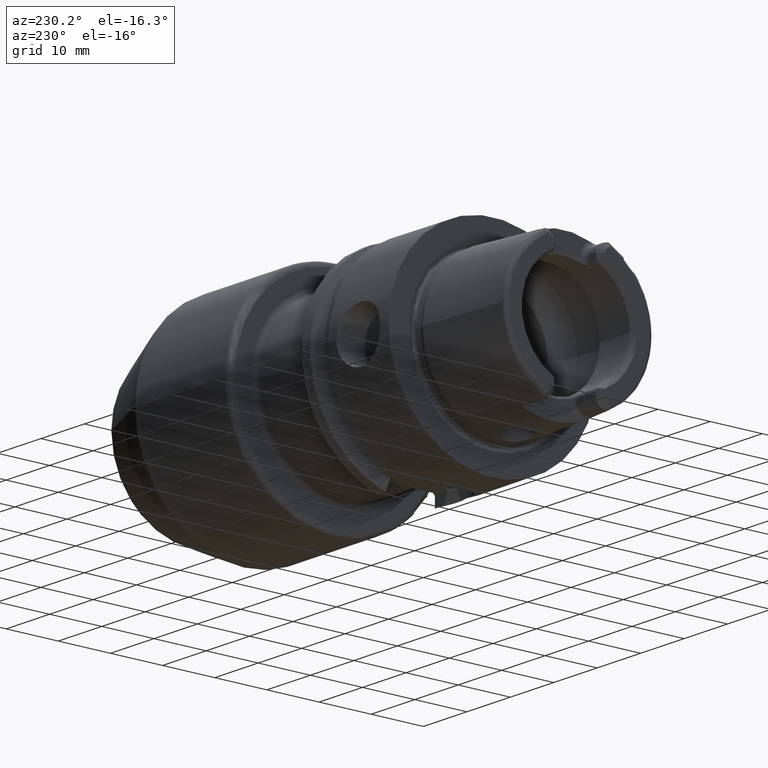
[diagram: clean part render]
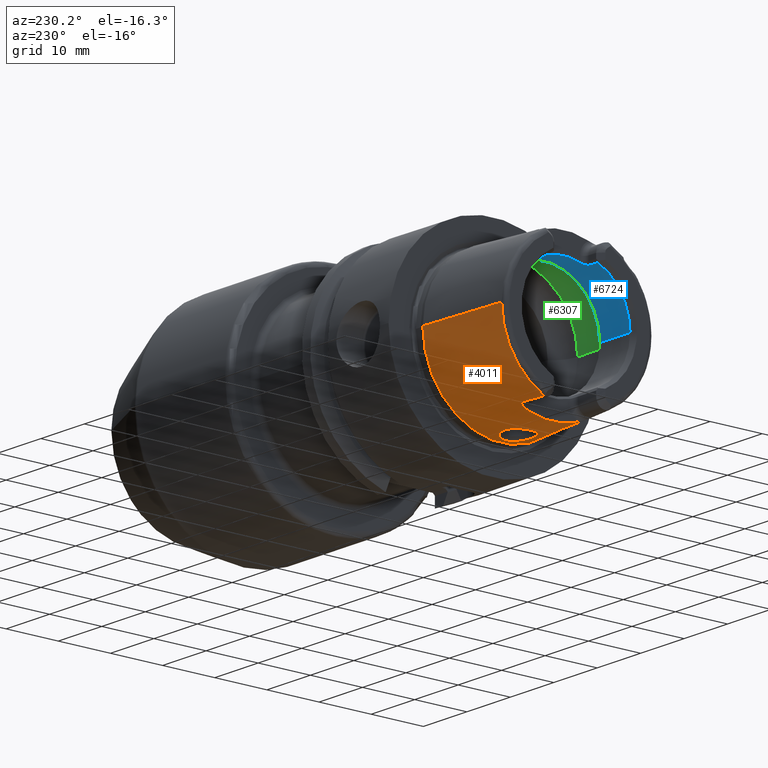
[diagram: same view with three faces highlighted in distinct colors, each labeled with its STEP entity id]
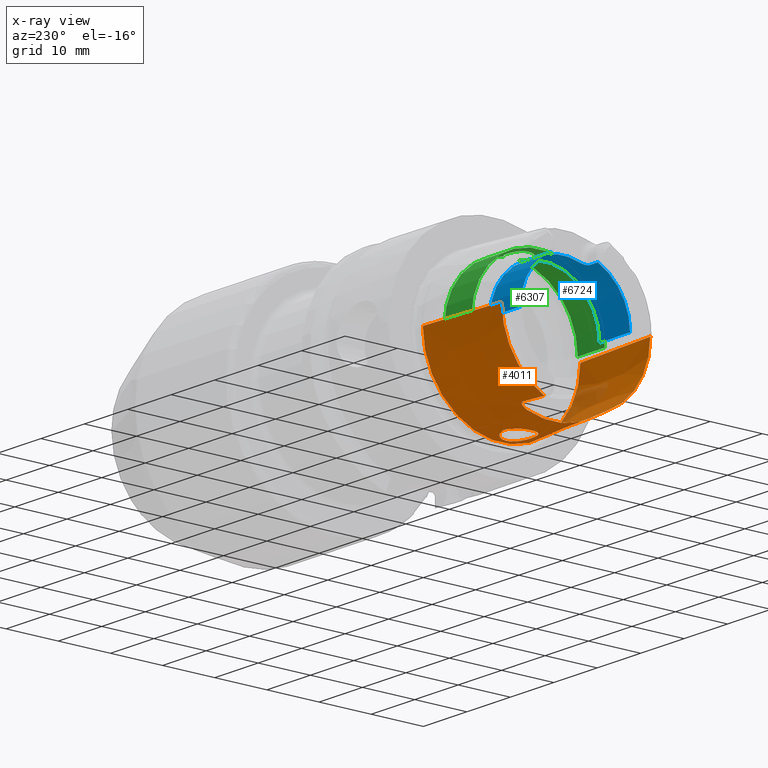
[diagram: x-ray of the same camera — body ghosted, the three highlighted faces saturated]
A machine part, auxiliary view with three faces highlighted in distinct colors.
The next image is the same camera in x-ray (body ghosted, the three faces saturated) — at least one of them is partly hidden behind the body in this view.
Their STEP definitions:

[orange] entity #4011 — the highlighted conical surface has half-angle 2.868 deg.
#309=CARTESIAN_POINT('',(-1.914002979389E1,0.E0,0.E0));
#310=DIRECTION('',(-1.E0,0.E0,0.E0));
#311=DIRECTION('',(0.E0,1.E0,0.E0));
#312=AXIS2_PLACEMENT_3D('',#309,#310,#311);
#390=CARTESIAN_POINT('',(-1.914002979389E1,0.E0,0.E0));
#391=DIRECTION('',(-1.E0,0.E0,0.E0));
#392=DIRECTION('',(0.E0,-4.271561162710E-1,-9.041778875488E-1));
#393=AXIS2_PLACEMENT_3D('',#390,#391,#392);
#523=CARTESIAN_POINT('',(-1.914002979389E1,6.084832258490E0,-1.288E1));
#524=CARTESIAN_POINT('',(-1.866428177370E1,6.140631473118E0,-1.288E1));
#525=CARTESIAN_POINT('',(-1.770476082680E1,6.251916414602E0,-1.288E1));
#526=CARTESIAN_POINT('',(-1.624153064153E1,6.418003532151E0,-1.288E1));
#527=CARTESIAN_POINT('',(-1.524986049720E1,6.528261059149E0,-1.288E1));
#528=CARTESIAN_POINT('',(-1.475E1,6.583286053E0,-1.288E1));
#530=CARTESIAN_POINT('',(-1.385E1,0.E0,0.E0));
#531=DIRECTION('',(1.E0,0.E0,0.E0));
#532=DIRECTION('',(0.E0,-3.438896312514E-1,-9.390100753015E-1));
#533=AXIS2_PLACEMENT_3D('',#530,#531,#532);
#535=CARTESIAN_POINT('',(-1.475E1,-6.583286053E0,-1.288E1));
#536=CARTESIAN_POINT('',(-1.524982054879E1,-6.528265456698E0,-1.288E1));
#537=CARTESIAN_POINT('',(-1.624143746232E1,-6.418013966559E0,-1.288E1));
#538=CARTESIAN_POINT('',(-1.770466890957E1,-6.251926990688E0,-1.288E1));
#539=CARTESIAN_POINT('',(-1.866424239688E1,-6.140636091520E0,-1.288E1));
#540=CARTESIAN_POINT('',(-1.914002979389E1,-6.084832258490E0,-1.288E1));
#542=DIRECTION('',(-9.987473526255E-1,5.003724236654E-2,0.E0));
#543=VECTOR('',#542,1.716152713580E1);
#544=CARTESIAN_POINT('',(-2.E0,-1.51037E1,0.E0));
#545=LINE('',#544,#543);
#546=CARTESIAN_POINT('',(-2.E0,0.E0,0.E0));
#547=DIRECTION('',(1.E0,0.E0,0.E0));
#548=DIRECTION('',(0.E0,-1.E0,0.E0));
#549=AXIS2_PLACEMENT_3D('',#546,#547,#548);
#551=DIRECTION('',(-9.987473526255E-1,-5.003724236654E-2,0.E0));
#552=VECTOR('',#551,1.716152713580E1);
#553=CARTESIAN_POINT('',(-2.E0,1.51037E1,0.E0));
#554=LINE('',#553,#552);
#555=CARTESIAN_POINT('',(-3.100721094176E0,2.355300483820E-9,
-1.504852333800E1));
#556=CARTESIAN_POINT('',(-3.100678992068E0,1.770140856364E-1,
-1.504852544731E1));
#557=CARTESIAN_POINT('',(-3.132326517496E0,5.260705930135E-1,
-1.504082638071E1));
#558=CARTESIAN_POINT('',(-3.276379810585E0,1.044086009470E0,-1.500630095381E1));
#559=CARTESIAN_POINT('',(-3.512592451688E0,1.524139717820E0,-1.495278605815E1));
#560=CARTESIAN_POINT('',(-3.833687591476E0,1.953544680709E0,-1.488600819184E1));
#561=CARTESIAN_POINT('',(-4.230740763601E0,2.317252707807E0,-1.481301275923E1));
#562=CARTESIAN_POINT('',(-4.690735032711E0,2.601743558394E0,-1.474174097836E1));
#563=CARTESIAN_POINT('',(-5.196043270225E0,2.795849602058E0,-1.467995762945E1));
#564=CARTESIAN_POINT('',(-5.728397413562E0,2.893526205649E0,-1.463359375698E1));
#565=CARTESIAN_POINT('',(-6.268838892341E0,2.892302651543E0,-1.460622521096E1));
#566=CARTESIAN_POINT('',(-6.799055409553E0,2.793054820950E0,-1.459870014220E1));
#567=CARTESIAN_POINT('',(-7.301520135950E0,2.599345103394E0,-1.460927773066E1));
#568=CARTESIAN_POINT('',(-7.759558111339E0,2.317247837012E0,-1.463398490261E1));
#569=CARTESIAN_POINT('',(-8.156997490557E0,1.956493354144E0,-1.466709282977E1));
#570=CARTESIAN_POINT('',(-8.480668617417E0,1.528857129790E0,-1.470208333882E1));
#571=CARTESIAN_POINT('',(-8.720164654117E0,1.048949256724E0,-1.473259839109E1));
#572=CARTESIAN_POINT('',(-8.866931191459E0,5.291606107420E-1,
-1.475331648138E1));
#573=CARTESIAN_POINT('',(-8.899377349278E0,1.783256028732E-1,
-1.475800766975E1));
#574=CARTESIAN_POINT('',(-8.899281891742E0,-2.789593368174E-9,
-1.475801245217E1));
#576=CARTESIAN_POINT('',(-8.899281891742E0,-2.789593368174E-9,
-1.475801245217E1));
#577=CARTESIAN_POINT('',(-8.899334330159E0,-1.786286621641E-1,
-1.475800982501E1));
#578=CARTESIAN_POINT('',(-8.866825589125E0,-5.299514743757E-1,
-1.475330104585E1));
#579=CARTESIAN_POINT('',(-8.719697092996E0,-1.050224395846E0,
-1.473253325390E1));
#580=CARTESIAN_POINT('',(-8.479919279379E0,-1.530046308081E0,
-1.470199491799E1));
#581=CARTESIAN_POINT('',(-8.156118401378E0,-1.957441701654E0,
-1.466700840239E1));
#582=CARTESIAN_POINT('',(-7.758626814124E0,-2.317930409857E0,
-1.463392212817E1));
#583=CARTESIAN_POINT('',(-7.300595156270E0,-2.599797148337E0,
-1.460924326732E1));
#584=CARTESIAN_POINT('',(-6.798093734571E0,-2.793326952534E0,
-1.459869656098E1));
#585=CARTESIAN_POINT('',(-6.267790654100E0,-2.892403072315E0,
-1.460625866568E1));
#586=CARTESIAN_POINT('',(-5.727376347055E0,-2.893428802036E0,
-1.463366538841E1));
#587=CARTESIAN_POINT('',(-5.195136889270E0,-2.795595016538E0,
-1.468005287120E1));
#588=CARTESIAN_POINT('',(-4.689868987718E0,-2.601320048894E0,
-1.474186087469E1));
#589=CARTESIAN_POINT('',(-4.229868853111E0,-2.316609474653E0,
-1.481315928607E1));
#590=CARTESIAN_POINT('',(-3.832912315325E0,-1.952693237424E0,
-1.488616064913E1));
#591=CARTESIAN_POINT('',(-3.511964621737E0,-1.523124607595E0,
-1.495292291485E1));
#592=CARTESIAN_POINT('',(-3.275978248414E0,-1.042984620877E0,
-1.500639621790E1));
#593=CARTESIAN_POINT('',(-3.132231598315E0,-5.253514606417E-1,
-1.504084990484E1));
#594=CARTESIAN_POINT('',(-3.100638938035E0,-1.767365759368E-1,
-1.504852745402E1));
#595=CARTESIAN_POINT('',(-3.100721094176E0,2.355300483820E-9,
-1.504852333800E1));
#609=CARTESIAN_POINT('',(-1.402670569594E1,5.905E0,-1.324442054771E1));
#610=CARTESIAN_POINT('',(-1.404882479779E1,5.969278146074E0,-1.321454893797E1));
#611=CARTESIAN_POINT('',(-1.409709445692E1,6.089773415238E0,-1.315704770185E1));
#612=CARTESIAN_POINT('',(-1.418239836628E1,6.246983837342E0,-1.307827968261E1));
#613=CARTESIAN_POINT('',(-1.427888622583E1,6.376580121318E0,-1.301008677364E1));
#614=CARTESIAN_POINT('',(-1.438631319279E1,6.478359571321E0,-1.295359845288E1));
#615=CARTESIAN_POINT('',(-1.450648070073E1,6.550491352199E0,-1.291044215515E1));
#616=CARTESIAN_POINT('',(-1.462941955296E1,6.586229352150E0,-1.288528378830E1));
#617=CARTESIAN_POINT('',(-1.471014531727E1,6.587673284406E0,-1.288E1));
#618=CARTESIAN_POINT('',(-1.475E1,6.583286053E0,-1.288E1));
#620=CARTESIAN_POINT('',(-1.385E1,4.989843707803E0,-1.362505027778E1));
#621=CARTESIAN_POINT('',(-1.385E1,5.083396973823E0,-1.359078866653E1));
#622=CARTESIAN_POINT('',(-1.386328675212E1,5.276146643957E0,-1.351730946468E1));
#623=CARTESIAN_POINT('',(-1.392341325654E1,5.581773160047E0,-1.339090310914E1));
#624=CARTESIAN_POINT('',(-1.398898022844E1,5.795369729915E0,-1.329536838681E1));
#625=CARTESIAN_POINT('',(-1.402670569594E1,5.905E0,-1.324442054771E1));
#741=CARTESIAN_POINT('',(-1.402670569594E1,-5.905E0,-1.324442054771E1));
#742=CARTESIAN_POINT('',(-1.398890817763E1,-5.795160350153E0,
-1.329546569066E1));
#743=CARTESIAN_POINT('',(-1.392327969089E1,-5.581271085665E0,
-1.339112052917E1));
#744=CARTESIAN_POINT('',(-1.386324987945E1,-5.275796566756E0,
-1.351744572066E1));
#745=CARTESIAN_POINT('',(-1.385E1,-5.083246430339E0,-1.359084379943E1));
#746=CARTESIAN_POINT('',(-1.385E1,-4.989843707803E0,-1.362505027778E1));
#753=CARTESIAN_POINT('',(-1.475E1,-6.583286053E0,-1.288E1));
#754=CARTESIAN_POINT('',(-1.471017927274E1,-6.587669546564E0,-1.288E1));
#755=CARTESIAN_POINT('',(-1.462941669271E1,-6.586499617253E0,
-1.288514677537E1));
#756=CARTESIAN_POINT('',(-1.450291703478E1,-6.549001623629E0,
-1.291140038669E1));
#757=CARTESIAN_POINT('',(-1.438515235308E1,-6.477174109922E0,
-1.295425185451E1));
#758=CARTESIAN_POINT('',(-1.427810220899E1,-6.375905036179E0,
-1.301046901446E1));
#759=CARTESIAN_POINT('',(-1.418003844350E1,-6.243306530741E0,
-1.308017181875E1));
#760=CARTESIAN_POINT('',(-1.409621026516E1,-6.087581639126E0,
-1.315809916272E1));
#761=CARTESIAN_POINT('',(-1.404850185174E1,-5.968339664307E0,
-1.321498507316E1));
#762=CARTESIAN_POINT('',(-1.402670569594E1,-5.905E0,-1.324442054771E1));
#2939=CARTESIAN_POINT('',(-2.E0,1.51037E1,0.E0));
#2940=CARTESIAN_POINT('',(-2.E0,-1.51037E1,0.E0));
#2941=VERTEX_POINT('',#2939);
#2942=VERTEX_POINT('',#2940);
#2943=CARTESIAN_POINT('',(-1.914002979389E1,1.424498450733E1,0.E0));
#2944=VERTEX_POINT('',#2943);
#2945=CARTESIAN_POINT('',(-1.914002979389E1,-1.424498450733E1,0.E0));
#2946=VERTEX_POINT('',#2945);
#2963=CARTESIAN_POINT('',(-1.914002979389E1,6.084832258490E0,-1.288E1));
#2964=VERTEX_POINT('',#2963);
#2965=CARTESIAN_POINT('',(-1.914002979389E1,-6.084832258490E0,-1.288E1));
#2966=VERTEX_POINT('',#2965);
#2990=CARTESIAN_POINT('',(-1.402670569594E1,-5.905E0,-1.324442054771E1));
#2992=VERTEX_POINT('',#2990);
#2993=VERTEX_POINT('',#746);
#2994=VERTEX_POINT('',#620);
#2995=VERTEX_POINT('',#625);
#3006=CARTESIAN_POINT('',(-1.475E1,-6.583286053E0,-1.288E1));
#3007=VERTEX_POINT('',#3006);
#3008=CARTESIAN_POINT('',(-1.475E1,6.583286053E0,-1.288E1));
#3009=VERTEX_POINT('',#3008);
#3269=VERTEX_POINT('',#555);
#3270=VERTEX_POINT('',#574);
#3979=CARTESIAN_POINT('',(-1.057001489695E1,0.E0,0.E0));
#3980=DIRECTION('',(1.E0,0.E0,0.E0));
#3981=DIRECTION('',(0.E0,-1.E0,0.E0));
#3982=AXIS2_PLACEMENT_3D('',#3979,#3980,#3981);
#3983=CONICAL_SURFACE('',#3982,1.467434225366E1,2.868120487315E0);
#3985=ORIENTED_EDGE('',*,*,#3984,.T.);
#3987=ORIENTED_EDGE('',*,*,#3986,.F.);
#3989=ORIENTED_EDGE('',*,*,#3988,.F.);
#3991=ORIENTED_EDGE('',*,*,#3990,.F.);
#3993=ORIENTED_EDGE('',*,*,#3992,.F.);
#3995=ORIENTED_EDGE('',*,*,#3994,.F.);
#3996=ORIENTED_EDGE('',*,*,#3970,.T.);
#3997=ORIENTED_EDGE('',*,*,#3797,.T.);
#3998=ORIENTED_EDGE('',*,*,#3494,.F.);
#4000=ORIENTED_EDGE('',*,*,#3999,.T.);
#4001=ORIENTED_EDGE('',*,*,#3490,.T.);
#4002=ORIENTED_EDGE('',*,*,#3776,.T.);
#4003=EDGE_LOOP('',(#3985,#3987,#3989,#3991,#3993,#3995,#3996,#3997,#3998,#4000,
#4001,#4002));
#4004=FACE_OUTER_BOUND('',#4003,.F.);
#4006=ORIENTED_EDGE('',*,*,#4005,.F.);
#4008=ORIENTED_EDGE('',*,*,#4007,.F.);
#4009=EDGE_LOOP('',(#4006,#4008));
#4010=FACE_BOUND('',#4009,.F.);
#4011=ADVANCED_FACE('',(#4004,#4010),#3983,.T.);
#313=CIRCLE('',#312,1.424498450733E1);
#394=CIRCLE('',#393,1.424498450733E1);
#529=B_SPLINE_CURVE_WITH_KNOTS('',3,(#523,#524,#525,#526,#527,#528),
.UNSPECIFIED.,.F.,.F.,(4,1,1,4),(0.E0,3.333333333333E-1,6.666666666667E-1,1.E0),
.UNSPECIFIED.);
#534=CIRCLE('',#533,1.4510015E1);
#541=B_SPLINE_CURVE_WITH_KNOTS('',3,(#535,#536,#537,#538,#539,#540),
.UNSPECIFIED.,.F.,.F.,(4,1,1,4),(0.E0,3.333333333333E-1,6.666666666667E-1,1.E0),
.UNSPECIFIED.);
#550=CIRCLE('',#549,1.51037E1);
#575=B_SPLINE_CURVE_WITH_KNOTS('',3,(#555,#556,#557,#558,#559,#560,#561,#562,
#563,#564,#565,#566,#567,#568,#569,#570,#571,#572,#573,#574),.UNSPECIFIED.,.F.,
.F.,(4,1,1,1,1,1,1,1,1,1,1,1,1,1,1,1,1,4),(0.E0,5.882352941176E-2,
1.176470588235E-1,1.764705882353E-1,2.352941176471E-1,2.941176470588E-1,
3.529411764706E-1,4.117647058824E-1,4.705882352941E-1,5.294117647059E-1,
5.882352941176E-1,6.470588235294E-1,7.058823529412E-1,7.647058823529E-1,
8.235294117647E-1,8.823529411765E-1,9.411764705882E-1,1.E0),.UNSPECIFIED.);
#596=B_SPLINE_CURVE_WITH_KNOTS('',3,(#576,#577,#578,#579,#580,#581,#582,#583,
#584,#585,#586,#587,#588,#589,#590,#591,#592,#593,#594,#595),.UNSPECIFIED.,.F.,
.F.,(4,1,1,1,1,1,1,1,1,1,1,1,1,1,1,1,1,4),(0.E0,5.882352941176E-2,
1.176470588235E-1,1.764705882353E-1,2.352941176471E-1,2.941176470588E-1,
3.529411764706E-1,4.117647058824E-1,4.705882352941E-1,5.294117647059E-1,
5.882352941176E-1,6.470588235294E-1,7.058823529412E-1,7.647058823529E-1,
8.235294117647E-1,8.823529411765E-1,9.411764705882E-1,1.E0),.UNSPECIFIED.);
#619=B_SPLINE_CURVE_WITH_KNOTS('',3,(#609,#610,#611,#612,#613,#614,#615,#616,
#617,#618),.UNSPECIFIED.,.F.,.F.,(4,1,1,1,1,1,1,4),(0.E0,1.428571428571E-1,
2.857142857143E-1,4.285714285714E-1,5.714285714286E-1,7.142857142857E-1,
8.571428571429E-1,1.E0),.UNSPECIFIED.);
#626=B_SPLINE_CURVE_WITH_KNOTS('',3,(#620,#621,#622,#623,#624,#625),
.UNSPECIFIED.,.F.,.F.,(4,1,1,4),(0.E0,3.333333333333E-1,6.666666666667E-1,1.E0),
.UNSPECIFIED.);
#747=B_SPLINE_CURVE_WITH_KNOTS('',3,(#741,#742,#743,#744,#745,#746),
.UNSPECIFIED.,.F.,.F.,(4,1,1,4),(0.E0,3.333333333333E-1,6.666666666667E-1,1.E0),
.UNSPECIFIED.);
#763=B_SPLINE_CURVE_WITH_KNOTS('',3,(#753,#754,#755,#756,#757,#758,#759,#760,
#761,#762),.UNSPECIFIED.,.F.,.F.,(4,1,1,1,1,1,1,4),(0.E0,1.428571428571E-1,
2.857142857143E-1,4.285714285714E-1,5.714285714286E-1,7.142857142857E-1,
8.571428571429E-1,1.E0),.UNSPECIFIED.);
#3490=EDGE_CURVE('',#2941,#2944,#554,.T.);
#3494=EDGE_CURVE('',#2942,#2946,#545,.T.);
#3776=EDGE_CURVE('',#2944,#2964,#313,.T.);
#3797=EDGE_CURVE('',#2966,#2946,#394,.T.);
#3970=EDGE_CURVE('',#3007,#2966,#541,.T.);
#3984=EDGE_CURVE('',#2964,#3009,#529,.T.);
#3986=EDGE_CURVE('',#2995,#3009,#619,.T.);
#3988=EDGE_CURVE('',#2994,#2995,#626,.T.);
#3990=EDGE_CURVE('',#2993,#2994,#534,.T.);
#3992=EDGE_CURVE('',#2992,#2993,#747,.T.);
#3994=EDGE_CURVE('',#3007,#2992,#763,.T.);
#3999=EDGE_CURVE('',#2942,#2941,#550,.T.);
#4005=EDGE_CURVE('',#3269,#3270,#575,.T.);
#4007=EDGE_CURVE('',#3270,#3269,#596,.T.);

[blue] entity #6724 — the highlighted cylindrical surface (partial cylindrical patch) has radius 10.521 mm, axis along (1, 0, 0).
#157=CARTESIAN_POINT('',(-1.895E1,0.E0,0.E0));
#158=DIRECTION('',(1.E0,0.E0,0.E0));
#159=DIRECTION('',(0.E0,1.E0,0.E0));
#160=AXIS2_PLACEMENT_3D('',#157,#158,#159);
#189=CARTESIAN_POINT('',(-1.895E1,0.E0,0.E0));
#190=DIRECTION('',(1.E0,0.E0,0.E0));
#191=DIRECTION('',(0.E0,-4.118322130602E-1,9.112596931095E-1));
#192=AXIS2_PLACEMENT_3D('',#189,#190,#191);
#490=DIRECTION('',(-1.E0,0.E0,0.E0));
#491=VECTOR('',#490,6.964774086463E0);
#492=CARTESIAN_POINT('',(-1.198522591354E1,1.0521E1,0.E0));
#493=LINE('',#492,#491);
#499=DIRECTION('',(-1.E0,0.E0,0.E0));
#500=VECTOR('',#499,6.964774086463E0);
#501=CARTESIAN_POINT('',(-1.198522591354E1,-1.0521E1,0.E0));
#502=LINE('',#501,#500);
#2739=DIRECTION('',(1.E0,0.E0,0.E0));
#2740=VECTOR('',#2739,1.75E0);
#2741=CARTESIAN_POINT('',(-1.895E1,4.332886713606E0,9.587363231205E0));
#2742=LINE('',#2741,#2740);
#2743=CARTESIAN_POINT('',(-1.606905989232E1,3.125E0,1.004618415121E1));
#2744=CARTESIAN_POINT('',(-1.606592975632E1,3.211047903171E0,1.001941779959E1));
#2745=CARTESIAN_POINT('',(-1.607830690364E1,3.376674935651E0,9.965489777489E0));
#2746=CARTESIAN_POINT('',(-1.614487701062E1,3.608387354782E0,9.883797452958E0));
#2747=CARTESIAN_POINT('',(-1.625248013602E1,3.815484612350E0,9.805480189144E0));
#2748=CARTESIAN_POINT('',(-1.639066255617E1,3.989788124029E0,9.735653861391E0));
#2749=CARTESIAN_POINT('',(-1.656012006947E1,4.135710131119E0,9.674392936752E0));
#2750=CARTESIAN_POINT('',(-1.675410390616E1,4.245967146710E0,9.626339205827E0));
#2751=CARTESIAN_POINT('',(-1.697166896900E1,4.316666764180E0,9.594719443667E0));
#2752=CARTESIAN_POINT('',(-1.712238435692E1,4.332886713606E0,9.587363231205E0));
#2753=CARTESIAN_POINT('',(-1.72E1,4.332886713606E0,9.587363231205E0));
#2755=CARTESIAN_POINT('',(-1.606905989232E1,-3.125E0,1.004618415121E1));
#2756=CARTESIAN_POINT('',(-1.606905989232E1,-2.721042228970E0,
1.017184062092E1));
#2757=CARTESIAN_POINT('',(-1.606905989235E1,-1.897951985783E0,
1.037436441745E1));
#2758=CARTESIAN_POINT('',(-1.606905989234E1,-6.357304159774E-1,
1.052736939476E1));
#2759=CARTESIAN_POINT('',(-1.606905989234E1,6.357304159773E-1,
1.052736939476E1));
#2760=CARTESIAN_POINT('',(-1.606905989235E1,1.897951985784E0,1.037436441746E1));
#2761=CARTESIAN_POINT('',(-1.606905989232E1,2.721042228969E0,1.017184062091E1));
#2762=CARTESIAN_POINT('',(-1.606905989232E1,3.125E0,1.004618415121E1));
#2764=CARTESIAN_POINT('',(-1.72E1,-4.332886713606E0,9.587363231205E0));
#2765=CARTESIAN_POINT('',(-1.712285006857E1,-4.332886713606E0,
9.587363231205E0));
#2766=CARTESIAN_POINT('',(-1.697307041867E1,-4.316718593708E0,
9.594693336977E0));
#2767=CARTESIAN_POINT('',(-1.675926406065E1,-4.248069617224E0,
9.625405215616E0));
#2768=CARTESIAN_POINT('',(-1.656435139104E1,-4.138751657454E0,
9.673089130358E0));
#2769=CARTESIAN_POINT('',(-1.639441708920E1,-3.993617830692E0,
9.734075777498E0));
#2770=CARTESIAN_POINT('',(-1.625572565004E1,-3.820495104545E0,
9.803525976759E0));
#2771=CARTESIAN_POINT('',(-1.614643644861E1,-3.612675047199E0,
9.882244600219E0));
#2772=CARTESIAN_POINT('',(-1.607856837010E1,-3.378987943032E0,
9.964725252688E0));
#2773=CARTESIAN_POINT('',(-1.606589935315E1,-3.211883690699E0,
1.001915781670E1));
#2774=CARTESIAN_POINT('',(-1.606905989232E1,-3.125E0,1.004618415121E1));
#2776=DIRECTION('',(1.E0,0.E0,0.E0));
#2777=VECTOR('',#2776,1.75E0);
#2778=CARTESIAN_POINT('',(-1.895E1,-4.332886713606E0,9.587363231205E0));
#2779=LINE('',#2778,#2777);
#2780=CARTESIAN_POINT('',(-1.198522591354E1,0.E0,0.E0));
#2781=DIRECTION('',(1.E0,0.E0,0.E0));
#2782=DIRECTION('',(0.E0,1.E0,0.E0));
#2783=AXIS2_PLACEMENT_3D('',#2780,#2781,#2782);
#3022=CARTESIAN_POINT('',(-1.72E1,4.332886713606E0,9.587363231205E0));
#3023=VERTEX_POINT('',#3022);
#3024=CARTESIAN_POINT('',(-1.606905989232E1,3.125E0,1.004618415121E1));
#3025=VERTEX_POINT('',#3024);
#3026=CARTESIAN_POINT('',(-1.72E1,-4.332886713606E0,9.587363231205E0));
#3027=VERTEX_POINT('',#3026);
#3028=CARTESIAN_POINT('',(-1.606905989232E1,-3.125E0,1.004618415121E1));
#3029=VERTEX_POINT('',#3028);
#3293=CARTESIAN_POINT('',(-1.198522591354E1,1.0521E1,0.E0));
#3294=VERTEX_POINT('',#3293);
#3295=CARTESIAN_POINT('',(-1.895E1,1.0521E1,0.E0));
#3296=VERTEX_POINT('',#3295);
#3305=CARTESIAN_POINT('',(-1.198522591354E1,-1.0521E1,0.E0));
#3306=VERTEX_POINT('',#3305);
#3307=CARTESIAN_POINT('',(-1.895E1,-1.0521E1,0.E0));
#3308=VERTEX_POINT('',#3307);
#3309=CARTESIAN_POINT('',(-1.895E1,4.332886713606E0,9.587363231205E0));
#3310=VERTEX_POINT('',#3309);
#3311=CARTESIAN_POINT('',(-1.895E1,-4.332886713606E0,9.587363231205E0));
#3312=VERTEX_POINT('',#3311);
#6703=CARTESIAN_POINT('',(-2.12925E1,0.E0,0.E0));
#6704=DIRECTION('',(1.E0,0.E0,0.E0));
#6705=DIRECTION('',(0.E0,-1.E0,0.E0));
#6706=AXIS2_PLACEMENT_3D('',#6703,#6704,#6705);
#6707=CYLINDRICAL_SURFACE('',#6706,1.0521E1);
#6708=ORIENTED_EDGE('',*,*,#3671,.T.);
#6710=ORIENTED_EDGE('',*,*,#6709,.F.);
#6712=ORIENTED_EDGE('',*,*,#6711,.F.);
#6714=ORIENTED_EDGE('',*,*,#6713,.F.);
#6716=ORIENTED_EDGE('',*,*,#6715,.F.);
#6717=ORIENTED_EDGE('',*,*,#3636,.T.);
#6718=ORIENTED_EDGE('',*,*,#3897,.F.);
#6719=ORIENTED_EDGE('',*,*,#6683,.F.);
#6720=ORIENTED_EDGE('',*,*,#3893,.T.);
#6721=ORIENTED_EDGE('',*,*,#3616,.T.);
#6722=EDGE_LOOP('',(#6708,#6710,#6712,#6714,#6716,#6717,#6718,#6719,#6720,
#6721));
#6723=FACE_OUTER_BOUND('',#6722,.F.);
#6724=ADVANCED_FACE('',(#6723),#6707,.F.);
#161=CIRCLE('',#160,1.0521E1);
#193=CIRCLE('',#192,1.0521E1);
#2754=B_SPLINE_CURVE_WITH_KNOTS('',3,(#2743,#2744,#2745,#2746,#2747,#2748,#2749,
#2750,#2751,#2752,#2753),.UNSPECIFIED.,.F.,.F.,(4,1,1,1,1,1,1,1,4),(0.E0,
1.25E-1,2.5E-1,3.75E-1,5.E-1,6.25E-1,7.5E-1,8.75E-1,1.E0),.UNSPECIFIED.);
#2763=B_SPLINE_CURVE_WITH_KNOTS('',3,(#2755,#2756,#2757,#2758,#2759,#2760,#2761,
#2762),.UNSPECIFIED.,.F.,.F.,(4,1,1,1,1,4),(0.E0,2.E-1,4.E-1,6.E-1,8.E-1,1.E0),
.UNSPECIFIED.);
#2775=B_SPLINE_CURVE_WITH_KNOTS('',3,(#2764,#2765,#2766,#2767,#2768,#2769,#2770,
#2771,#2772,#2773,#2774),.UNSPECIFIED.,.F.,.F.,(4,1,1,1,1,1,1,1,4),(0.E0,
1.25E-1,2.5E-1,3.75E-1,5.E-1,6.25E-1,7.5E-1,8.75E-1,1.E0),.UNSPECIFIED.);
#2784=CIRCLE('',#2783,1.0521E1);
#3616=EDGE_CURVE('',#3296,#3310,#161,.T.);
#3636=EDGE_CURVE('',#3312,#3308,#193,.T.);
#3671=EDGE_CURVE('',#3310,#3023,#2742,.T.);
#3893=EDGE_CURVE('',#3294,#3296,#493,.T.);
#3897=EDGE_CURVE('',#3306,#3308,#502,.T.);
#6683=EDGE_CURVE('',#3294,#3306,#2784,.T.);
#6709=EDGE_CURVE('',#3025,#3023,#2754,.T.);
#6711=EDGE_CURVE('',#3029,#3025,#2763,.T.);
#6713=EDGE_CURVE('',#3027,#3029,#2775,.T.);
#6715=EDGE_CURVE('',#3312,#3027,#2779,.T.);

[green] entity #6307 — the highlighted cylindrical surface (partial cylindrical patch) has radius 12.7825 mm, axis along (1, 0, 0).
#2362=CARTESIAN_POINT('',(-4.183373967266E0,1.410627469318E0,1.270442585845E1));
#2364=CARTESIAN_POINT('',(-4.183373967266E0,-1.410627469318E0,
1.270442585845E1));
#2377=CARTESIAN_POINT('',(-4.183373967266E0,1.410627469318E0,1.270442585845E1));
#2378=CARTESIAN_POINT('',(-4.274403495326E0,1.527856584741E0,1.269140940164E1));
#2379=CARTESIAN_POINT('',(-4.475004226397E0,1.740624065046E0,1.266456559304E1));
#2380=CARTESIAN_POINT('',(-4.839193564595E0,2.002181783190E0,1.262539817910E1));
#2381=CARTESIAN_POINT('',(-5.241965889075E0,2.186602178495E0,1.259435938943E1));
#2382=CARTESIAN_POINT('',(-5.677773856708E0,2.291856147756E0,1.257540039172E1));
#2383=CARTESIAN_POINT('',(-6.123174914142E0,2.311225989116E0,1.257180628270E1));
#2384=CARTESIAN_POINT('',(-6.568867845807E0,2.243420386424E0,1.258424088453E1));
#2385=CARTESIAN_POINT('',(-6.984765866479E0,2.093901161388E0,1.261030394781E1));
#2386=CARTESIAN_POINT('',(-7.361388377958E0,1.870614129358E0,1.264575276759E1));
#2387=CARTESIAN_POINT('',(-7.685045178152E0,1.585221874079E0,1.268515470075E1));
#2388=CARTESIAN_POINT('',(-7.951993774449E0,1.241850886488E0,1.272379300211E1));
#2389=CARTESIAN_POINT('',(-8.150783387678E0,8.542522111254E-1,
1.275617300594E1));
#2390=CARTESIAN_POINT('',(-8.274571437991E0,4.243311612305E-1,
1.277787772158E1));
#2391=CARTESIAN_POINT('',(-8.3E0,1.424213966933E-1,1.27825E1));
#2392=CARTESIAN_POINT('',(-8.3E0,0.E0,1.27825E1));
#2394=CARTESIAN_POINT('',(-4.183373967266E0,0.E0,0.E0));
#2395=DIRECTION('',(1.E0,0.E0,0.E0));
#2396=DIRECTION('',(0.E0,1.E0,0.E0));
#2397=AXIS2_PLACEMENT_3D('',#2394,#2395,#2396);
#2399=CARTESIAN_POINT('',(-4.183373967266E0,0.E0,0.E0));
#2400=DIRECTION('',(1.E0,0.E0,0.E0));
#2401=DIRECTION('',(0.E0,-1.103561485873E-1,9.938921070564E-1));
#2402=AXIS2_PLACEMENT_3D('',#2399,#2400,#2401);
#2404=CARTESIAN_POINT('',(-8.3E0,0.E0,1.27825E1));
#2405=CARTESIAN_POINT('',(-8.3E0,-1.416090721544E-1,1.27825E1));
#2406=CARTESIAN_POINT('',(-8.274865995888E0,-4.220491537933E-1,
1.277793161855E1));
#2407=CARTESIAN_POINT('',(-8.152225433426E0,-8.502859641601E-1,
1.275642194175E1));
#2408=CARTESIAN_POINT('',(-7.955184913088E0,-1.236579221498E0,
1.272429532511E1));
#2409=CARTESIAN_POINT('',(-7.690676902815E0,-1.578995807713E0,
1.268592498166E1));
#2410=CARTESIAN_POINT('',(-7.370059158072E0,-1.864084023608E0,
1.264671945011E1));
#2411=CARTESIAN_POINT('',(-6.996021733486E0,-2.088568866862E0,
1.261119985800E1));
#2412=CARTESIAN_POINT('',(-6.579390599094E0,-2.240899810175E0,
1.258469853568E1));
#2413=CARTESIAN_POINT('',(-6.131290903816E0,-2.310946649201E0,
1.257185839313E1));
#2414=CARTESIAN_POINT('',(-5.683757208223E0,-2.292779437691E0,
1.257523007165E1));
#2415=CARTESIAN_POINT('',(-5.246631956785E0,-2.188306797954E0,
1.259406156357E1));
#2416=CARTESIAN_POINT('',(-4.841896324598E0,-2.003877808837E0,
1.262513077668E1));
#2417=CARTESIAN_POINT('',(-4.476190665979E0,-1.741789414792E0,
1.266441141396E1));
#2418=CARTESIAN_POINT('',(-4.274755801937E0,-1.528310290185E0,
1.269135902476E1));
#2419=CARTESIAN_POINT('',(-4.183373967266E0,-1.410627469318E0,
1.270442585845E1));
#2460=DIRECTION('',(-1.E0,0.E0,0.E0));
#2461=VECTOR('',#2460,6.265234204822E0);
#2462=CARTESIAN_POINT('',(-4.183373967266E0,-1.27825E1,0.E0));
#2463=LINE('',#2462,#2461);
#2464=DIRECTION('',(-1.E0,0.E0,0.E0));
#2465=VECTOR('',#2464,6.265234204822E0);
#2466=CARTESIAN_POINT('',(-4.183373967266E0,1.27825E1,0.E0));
#2467=LINE('',#2466,#2465);
#2716=CARTESIAN_POINT('',(-1.044860817209E1,0.E0,0.E0));
#2717=DIRECTION('',(1.E0,0.E0,0.E0));
#2718=DIRECTION('',(0.E0,1.E0,0.E0));
#2719=AXIS2_PLACEMENT_3D('',#2716,#2717,#2718);
#3265=CARTESIAN_POINT('',(-8.3E0,0.E0,1.27825E1));
#3266=VERTEX_POINT('',#3265);
#3287=CARTESIAN_POINT('',(-4.183373967266E0,1.27825E1,0.E0));
#3288=VERTEX_POINT('',#3287);
#3289=CARTESIAN_POINT('',(-1.044860817209E1,1.27825E1,0.E0));
#3290=VERTEX_POINT('',#3289);
#3299=CARTESIAN_POINT('',(-4.183373967266E0,-1.27825E1,0.E0));
#3300=VERTEX_POINT('',#3299);
#3301=CARTESIAN_POINT('',(-1.044860817209E1,-1.27825E1,0.E0));
#3302=VERTEX_POINT('',#3301);
#3317=VERTEX_POINT('',#2362);
#3318=VERTEX_POINT('',#2364);
#6290=CARTESIAN_POINT('',(-2.12925E1,0.E0,0.E0));
#6291=DIRECTION('',(1.E0,0.E0,0.E0));
#6292=DIRECTION('',(0.E0,-1.E0,0.E0));
#6293=AXIS2_PLACEMENT_3D('',#6290,#6291,#6292);
#6294=CYLINDRICAL_SURFACE('',#6293,1.27825E1);
#6295=ORIENTED_EDGE('',*,*,#6249,.F.);
#6296=ORIENTED_EDGE('',*,*,#6285,.F.);
#6298=ORIENTED_EDGE('',*,*,#6297,.T.);
#6300=ORIENTED_EDGE('',*,*,#6299,.T.);
#6302=ORIENTED_EDGE('',*,*,#6301,.F.);
#6303=ORIENTED_EDGE('',*,*,#6277,.F.);
#6304=ORIENTED_EDGE('',*,*,#6035,.F.);
#6305=EDGE_LOOP('',(#6295,#6296,#6298,#6300,#6302,#6303,#6304));
#6306=FACE_OUTER_BOUND('',#6305,.F.);
#6307=ADVANCED_FACE('',(#6306),#6294,.F.);
#2393=B_SPLINE_CURVE_WITH_KNOTS('',3,(#2377,#2378,#2379,#2380,#2381,#2382,#2383,
#2384,#2385,#2386,#2387,#2388,#2389,#2390,#2391,#2392),.UNSPECIFIED.,.F.,.F.,(4,
1,1,1,1,1,1,1,1,1,1,1,1,4),(0.E0,7.692307692308E-2,1.538461538462E-1,
2.307692307692E-1,3.076923076923E-1,3.846153846154E-1,4.615384615385E-1,
5.384615384615E-1,6.153846153846E-1,6.923076923077E-1,7.692307692308E-1,
8.461538461538E-1,9.230769230769E-1,1.E0),.UNSPECIFIED.);
#2398=CIRCLE('',#2397,1.27825E1);
#2403=CIRCLE('',#2402,1.27825E1);
#2420=B_SPLINE_CURVE_WITH_KNOTS('',3,(#2404,#2405,#2406,#2407,#2408,#2409,#2410,
#2411,#2412,#2413,#2414,#2415,#2416,#2417,#2418,#2419),.UNSPECIFIED.,.F.,.F.,(4,
1,1,1,1,1,1,1,1,1,1,1,1,4),(0.E0,7.692307692308E-2,1.538461538462E-1,
2.307692307692E-1,3.076923076923E-1,3.846153846154E-1,4.615384615385E-1,
5.384615384615E-1,6.153846153846E-1,6.923076923077E-1,7.692307692308E-1,
8.461538461538E-1,9.230769230769E-1,1.E0),.UNSPECIFIED.);
#2720=CIRCLE('',#2719,1.27825E1);
#6035=EDGE_CURVE('',#3266,#3318,#2420,.T.);
#6249=EDGE_CURVE('',#3317,#3266,#2393,.T.);
#6277=EDGE_CURVE('',#3318,#3300,#2403,.T.);
#6285=EDGE_CURVE('',#3288,#3317,#2398,.T.);
#6297=EDGE_CURVE('',#3288,#3290,#2467,.T.);
#6299=EDGE_CURVE('',#3290,#3302,#2720,.T.);
#6301=EDGE_CURVE('',#3300,#3302,#2463,.T.);